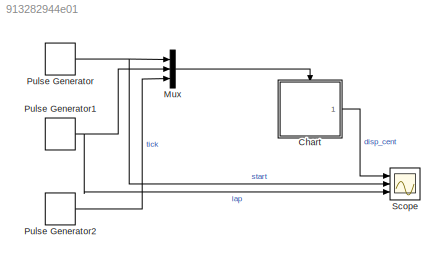
MODEL slx_913282944e01
KIND model
CONFIG AbsTol = auto
CONFIG EnableMultiTasking = off
CONFIG FixedStep = auto
CONFIG MaxStep = 0.1
CONFIG MinStep = auto
CONFIG RelTol = 1e-3
CONFIG SampleTimeConstraint = Unconstrained
CONFIG Solver = VariableStepDiscrete
CONFIG SolverName = VariableStepDiscrete
CONFIG StartTime = 0.0
CONFIG StopTime = 1
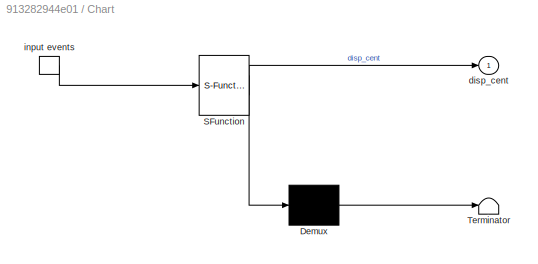
BLOCK [SubSystem] Chart
  ErrorFcn = Stateflow.Translate.translate
  PermitHierarchicalResolution = ExplicitOnly
  Ports = [0, 1, 0, 1]
  RequestExecContextInheritance = off
  SFBlockType = Chart
  TreatAsAtomicUnit = on
BLOCK [Demux] Chart/ Demux 
  Outputs = 1
  Ports = [1, 1]
BLOCK [S-Function] Chart/ SFunction 
  EnableBusSupport = on
  FunctionName = sf_sfun
  PortCounts = [1 2]
  Ports = [1, 2]
  SFcnIsStateOwnerBlock = off
  SFunctionDeploymentMode = off
  Tag = Stateflow S-Function StopWatch2_2018a 3
BLOCK [Terminator] Chart/ Terminator 
BLOCK [Outport] Chart/disp_cent
BLOCK [TriggerPort] Chart/input events
  Ports = [0, 1]
  ShowOutputPort = on
  StatesWhenEnabling = held
  VariantControl = (inherit)
BLOCK [Mux] Mux
  DisplayOption = bar
  Inputs = 3
  Ports = [3, 1]
BLOCK [DiscretePulseGenerator] Pulse Generator
  Period = 0.3
  PhaseDelay = 0.03
  Ports = [0, 1]
  PulseType = Time based
  PulseWidth = 30
BLOCK [DiscretePulseGenerator] Pulse Generator1
  Period = 0.1
  PhaseDelay = 0.05
  Ports = [0, 1]
  PulseType = Time based
  PulseWidth = 30
BLOCK [DiscretePulseGenerator] Pulse Generator2
  Period = 0.01
  Ports = [0, 1]
  PulseType = Time based
  PulseWidth = 50
BLOCK [Scope] Scope
  Floating = off
  NumInputPorts = 3
  Ports = [3]
  ScopeSpecificationString = Simulink.scopes.TimeScopeBlockCfg('CurrentConfiguration', extmgr.ConfigurationSet(extmgr.Configuration('Core','General UI',true),extmgr.Configuration('Core','Source UI',true),extmgr.Configuration('Sources','WiredSimulink',true),extmgr.Configuration('Visuals','Time Domain',true,'SerializedDisplays',{struct('MinYLimReal','-2.75','MaxYLimReal','24.75','YLabelReal','','MinYLimMag','0.00000','MaxYLimMa...<+2647ch>
LINE Chart:1 -> Scope:1
LINE Mux:1 -> Chart:trigger
NET Pulse Generator1:1 -> Mux:2, Scope:3
LINE Pulse Generator2:1 -> Mux:3
NET Pulse Generator:1 -> Mux:1, Scope:2
note: NET lines group one-source signal fan-out (src -> all destinations, sorted); 1:1 wires keep LINE
CHART Chart states=7 transitions=15
  STATE_LABEL 'StopW\nen:f("en_StopW")'
  STATE_LABEL 'Reset\nen:f("Reset")'
  STATE_LABEL 'LAP{cent=0;sec=0;\nmins=0;disp_cent=0;\ndisp_sec=0;disp_min=0;}'
  STATE_LABEL 'LapStop\nen:f("LapStop")'
  STATE_LABEL 'LAP'
  STATE_LABEL 'Reset\nen:f("Reset")'
  STATE_LABEL 'LAP{cent=0;sec=0;\nmins=0;disp_cent=0;\ndisp_sec=0;disp_min=0;}'
  STATE_LABEL 'LapStop\nen:f("LapStop")'
  STATE_LABEL 'RunW'
  STATE_LABEL 'Running\nen:f("Running")\nduring:\ndisp_cent=cent;\ndisp_sec=sec;\ndisp_min=mins;\n'
  STATE_LABEL 'Lap\nen:f("Lap")'
  STATE_LABEL 'TIC{cent=cent+1;}'
  STATE_LABEL '[cent==100]{cent=0;sec=sec+1;}'
  STATE_LABEL '[sec==60]{sec=0;mins=mins+1;}'
  STATE_LABEL 'LAP'
  STATE_LABEL 'LAP'
  STATE_LABEL 'Running\nen:f("Running")\nduring:\ndisp_cent=cent;\ndisp_sec=sec;\ndisp_min=mins;\n'
  STATE_LABEL 'Lap\nen:f("Lap")'
  STATE_LABEL 'f(s)'
  STATE_LABEL 'SCRIPT:\nfunction f(s)\n    fprintf(s+"\\n");\n \n'
